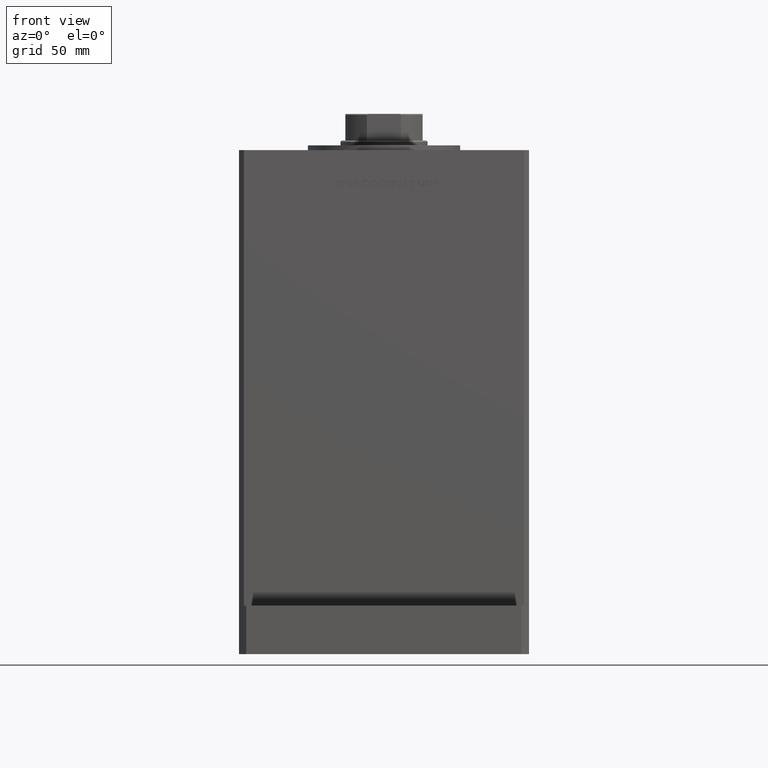
[diagram: clean part render]
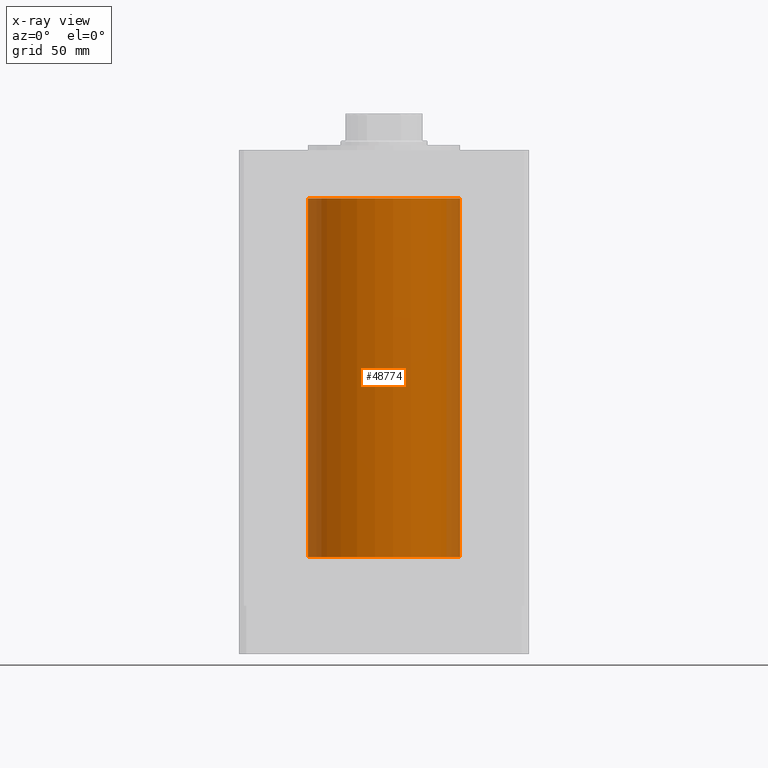
[diagram: x-ray — body ghosted, one internal face saturated and labeled with its STEP entity id]
A machine part, front view, then the same camera in x-ray: the body is ghosted and one INTERNAL B-rep face — a face not visible from any outside direction — is saturated and labeled: STEP entity #48774.
In plain terms, the highlighted cylindrical surface (partial cylindrical patch) has radius 31.5 mm, axis along (-0, -0, -1).
Its self-contained STEP definition (entity closure, byte-faithful):
#451 = CIRCLE ( 'NONE', #44371, 31.50000000000000000 ) ;
#1172 = AXIS2_PLACEMENT_3D ( 'NONE', #42472, #25506, #5027 ) ;
#1492 = VECTOR ( 'NONE', #20723, 1000.000000000000000 ) ;
#3135 = VERTEX_POINT ( 'NONE', #18770 ) ;
#4268 = LINE ( 'NONE', #44984, #1492 ) ;
#5027 = DIRECTION ( 'NONE',  ( -1.000000000000000000, 0.000000000000000000, 0.000000000000000000 ) ) ;
#9603 = CYLINDRICAL_SURFACE ( 'NONE', #1172, 31.50000000000000000 ) ;
#13478 = DIRECTION ( 'NONE',  ( 1.000000000000000000, 0.000000000000000000, 0.000000000000000000 ) ) ;
#17137 = EDGE_CURVE ( 'NONE', #26282, #3135, #36752, .T. ) ;
#17779 = DIRECTION ( 'NONE',  ( -0.000000000000000000, 0.000000000000000000, 1.000000000000000000 ) ) ;
#18770 = CARTESIAN_POINT ( 'NONE',  ( 31.50000000000000000, 3.857637417314162689E-15, 0.000000000000000000 ) ) ;
#19332 = EDGE_CURVE ( 'NONE', #47788, #26282, #45706, .T. ) ;
#20723 = DIRECTION ( 'NONE',  ( -0.000000000000000000, -0.000000000000000000, -1.000000000000000000 ) ) ;
#20921 = CARTESIAN_POINT ( 'NONE',  ( -31.50000000000000000, 0.000000000000000000, 148.5000000000000000 ) ) ;
#22095 = EDGE_CURVE ( 'NONE', #47788, #47575, #451, .T. ) ;
#25506 = DIRECTION ( 'NONE',  ( -0.000000000000000000, -0.000000000000000000, -1.000000000000000000 ) ) ;
#26282 = VERTEX_POINT ( 'NONE', #35245 ) ;
#26856 = ORIENTED_EDGE ( 'NONE', *, *, #17137, .F. ) ;
#26922 = EDGE_CURVE ( 'NONE', #47575, #3135, #4268, .T. ) ;
#29017 = FACE_OUTER_BOUND ( 'NONE', #34179, .T. ) ;
#29065 = VECTOR ( 'NONE', #53241, 1000.000000000000000 ) ;
#31464 = CARTESIAN_POINT ( 'NONE',  ( 31.50000000000000000, 3.857637417314162689E-15, 148.5000000000000000 ) ) ;
#32616 = DIRECTION ( 'NONE',  ( -0.000000000000000000, 0.000000000000000000, 1.000000000000000000 ) ) ;
#33424 = DIRECTION ( 'NONE',  ( 1.000000000000000000, 0.000000000000000000, 0.000000000000000000 ) ) ;
#34179 = EDGE_LOOP ( 'NONE', ( #50737, #38919, #26856, #44114 ) ) ;
#35245 = CARTESIAN_POINT ( 'NONE',  ( -31.50000000000000000, 0.000000000000000000, 0.000000000000000000 ) ) ;
#36752 = CIRCLE ( 'NONE', #39338, 31.50000000000000000 ) ;
#36925 = CARTESIAN_POINT ( 'NONE',  ( 0.000000000000000000, 0.000000000000000000, 148.5000000000000000 ) ) ;
#38001 = CARTESIAN_POINT ( 'NONE',  ( 0.000000000000000000, 0.000000000000000000, 0.000000000000000000 ) ) ;
#38919 = ORIENTED_EDGE ( 'NONE', *, *, #26922, .T. ) ;
#39338 = AXIS2_PLACEMENT_3D ( 'NONE', #38001, #32616, #33424 ) ;
#40332 = CARTESIAN_POINT ( 'NONE',  ( -31.50000000000000000, 0.000000000000000000, 148.5000000000000000 ) ) ;
#42472 = CARTESIAN_POINT ( 'NONE',  ( 0.000000000000000000, 0.000000000000000000, 148.5000000000000000 ) ) ;
#44114 = ORIENTED_EDGE ( 'NONE', *, *, #19332, .F. ) ;
#44371 = AXIS2_PLACEMENT_3D ( 'NONE', #36925, #17779, #13478 ) ;
#44984 = CARTESIAN_POINT ( 'NONE',  ( 31.50000000000000000, 3.857637417314162689E-15, 148.5000000000000000 ) ) ;
#45706 = LINE ( 'NONE', #40332, #29065 ) ;
#47575 = VERTEX_POINT ( 'NONE', #31464 ) ;
#47788 = VERTEX_POINT ( 'NONE', #20921 ) ;
#48774 = ADVANCED_FACE ( 'NONE', ( #29017 ), #9603, .F. ) ;
#50737 = ORIENTED_EDGE ( 'NONE', *, *, #22095, .T. ) ;
#53241 = DIRECTION ( 'NONE',  ( -0.000000000000000000, -0.000000000000000000, -1.000000000000000000 ) ) ;